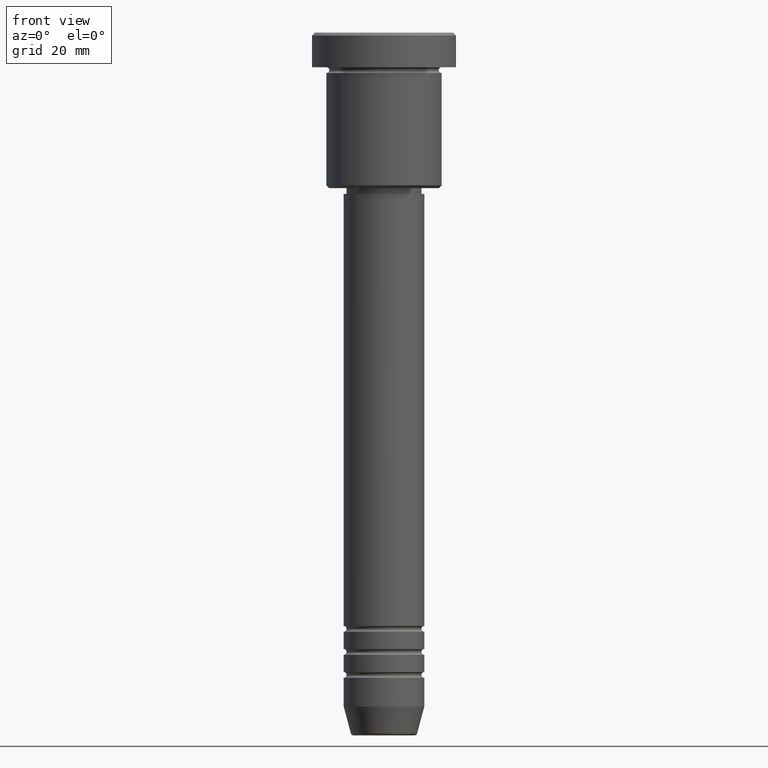
[diagram: clean part render]
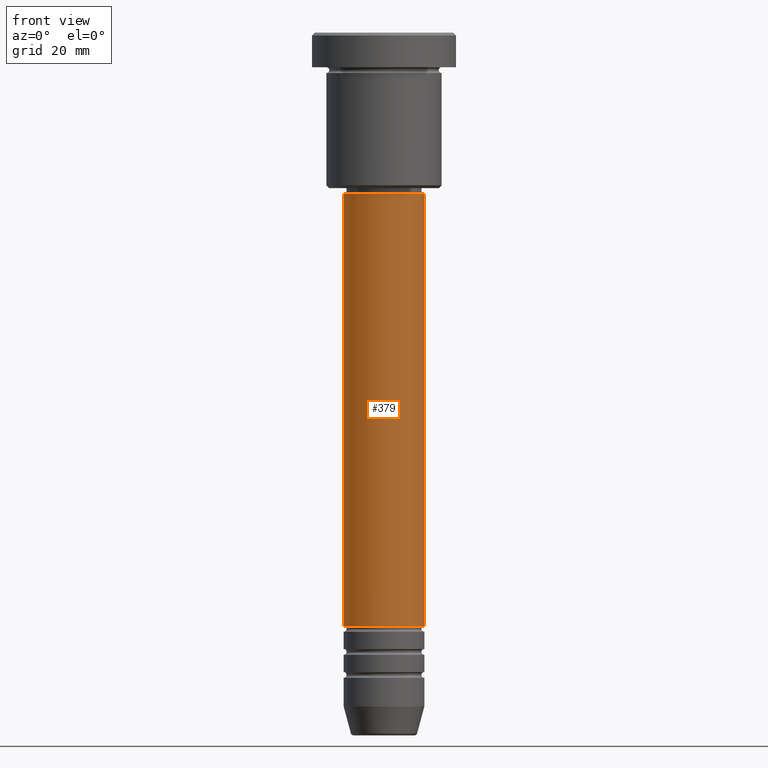
[diagram: same view with one face highlighted and labeled with its STEP entity id]
A machine part, front view. The second image highlights one B-rep face of the part: STEP entity #379.
In plain terms, the highlighted cylindrical surface (partial cylindrical patch) has radius 7 mm, axis along (-0, -0, 1).
Its self-contained STEP definition (entity closure, byte-faithful):
#40 = CARTESIAN_POINT ( 'NONE',  ( 7.000000000000000888, 0.000000000000000000, 0.000000000000000000 ) ) ;
#61 = VERTEX_POINT ( 'NONE', #373 ) ;
#82 = DIRECTION ( 'NONE',  ( 1.000000000000000000, 0.000000000000000000, 0.000000000000000000 ) ) ;
#94 = CARTESIAN_POINT ( 'NONE',  ( 7.000000000000000888, 0.000000000000000000, -102.9999999999999005 ) ) ;
#122 = FACE_OUTER_BOUND ( 'NONE', #761, .T. ) ;
#127 = DIRECTION ( 'NONE',  ( -0.000000000000000000, -0.000000000000000000, 1.000000000000000000 ) ) ;
#128 = CARTESIAN_POINT ( 'NONE',  ( 0.000000000000000000, 0.000000000000000000, -28.00000000000003197 ) ) ;
#136 = VECTOR ( 'NONE', #502, 1000.000000000000000 ) ;
#141 = EDGE_CURVE ( 'NONE', #675, #212, #713, .T. ) ;
#151 = CARTESIAN_POINT ( 'NONE',  ( -7.000000000000000888, 8.572527594031474176E-16, 0.000000000000000000 ) ) ;
#167 = DIRECTION ( 'NONE',  ( -0.000000000000000000, -0.000000000000000000, 1.000000000000000000 ) ) ;
#212 = VERTEX_POINT ( 'NONE', #615 ) ;
#227 = ORIENTED_EDGE ( 'NONE', *, *, #1089, .F. ) ;
#248 = VERTEX_POINT ( 'NONE', #1005 ) ;
#276 = AXIS2_PLACEMENT_3D ( 'NONE', #994, #167, #82 ) ;
#288 = DIRECTION ( 'NONE',  ( 1.000000000000000000, 0.000000000000000000, 0.000000000000000000 ) ) ;
#304 = ORIENTED_EDGE ( 'NONE', *, *, #368, .T. ) ;
#311 = AXIS2_PLACEMENT_3D ( 'NONE', #128, #577, #288 ) ;
#359 = EDGE_CURVE ( 'NONE', #248, #61, #955, .T. ) ;
#368 = EDGE_CURVE ( 'NONE', #248, #675, #848, .T. ) ;
#373 = CARTESIAN_POINT ( 'NONE',  ( -7.000000000000000888, 8.572527594031474176E-16, -28.00000000000003197 ) ) ;
#379 = ADVANCED_FACE ( 'NONE', ( #122 ), #484, .T. ) ;
#396 = DIRECTION ( 'NONE',  ( -0.000000000000000000, -0.000000000000000000, 1.000000000000000000 ) ) ;
#418 = DIRECTION ( 'NONE',  ( 1.000000000000000000, 0.000000000000000000, 0.000000000000000000 ) ) ;
#484 = CYLINDRICAL_SURFACE ( 'NONE', #276, 7.000000000000000888 ) ;
#502 = DIRECTION ( 'NONE',  ( -0.000000000000000000, -0.000000000000000000, 1.000000000000000000 ) ) ;
#544 = VECTOR ( 'NONE', #127, 1000.000000000000000 ) ;
#577 = DIRECTION ( 'NONE',  ( -0.000000000000000000, -0.000000000000000000, 1.000000000000000000 ) ) ;
#615 = CARTESIAN_POINT ( 'NONE',  ( 7.000000000000000888, 0.000000000000000000, -28.00000000000003197 ) ) ;
#675 = VERTEX_POINT ( 'NONE', #94 ) ;
#678 = ORIENTED_EDGE ( 'NONE', *, *, #359, .F. ) ;
#713 = LINE ( 'NONE', #40, #136 ) ;
#761 = EDGE_LOOP ( 'NONE', ( #678, #304, #1072, #227 ) ) ;
#778 = CIRCLE ( 'NONE', #311, 7.000000000000000888 ) ;
#848 = CIRCLE ( 'NONE', #941, 7.000000000000000888 ) ;
#941 = AXIS2_PLACEMENT_3D ( 'NONE', #1146, #396, #418 ) ;
#955 = LINE ( 'NONE', #151, #544 ) ;
#994 = CARTESIAN_POINT ( 'NONE',  ( 0.000000000000000000, 0.000000000000000000, 0.000000000000000000 ) ) ;
#1005 = CARTESIAN_POINT ( 'NONE',  ( -7.000000000000000888, 8.572527594031474176E-16, -102.9999999999999005 ) ) ;
#1072 = ORIENTED_EDGE ( 'NONE', *, *, #141, .T. ) ;
#1089 = EDGE_CURVE ( 'NONE', #61, #212, #778, .T. ) ;
#1146 = CARTESIAN_POINT ( 'NONE',  ( 0.000000000000000000, 0.000000000000000000, -102.9999999999999005 ) ) ;